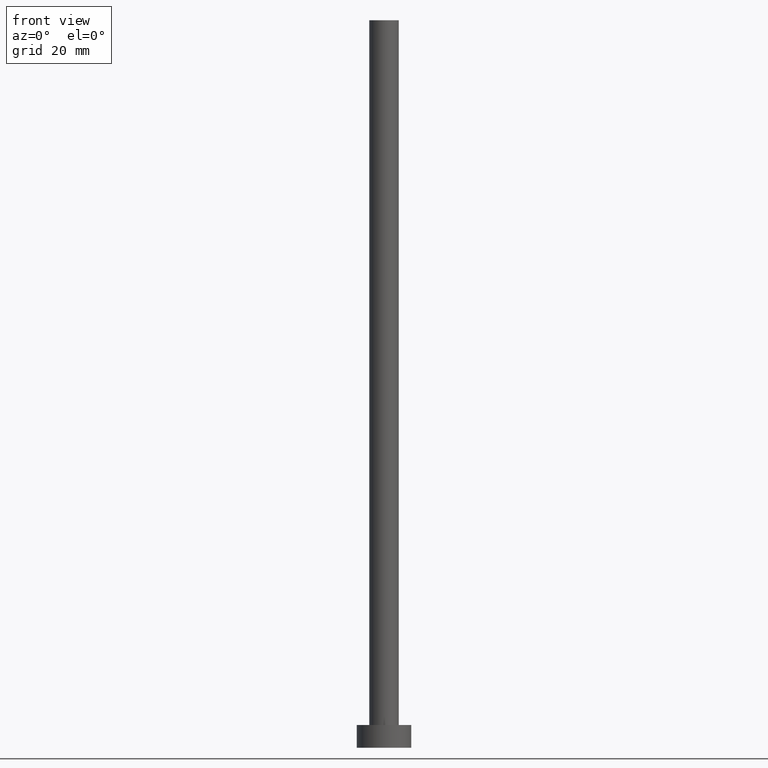
[diagram: clean part render]
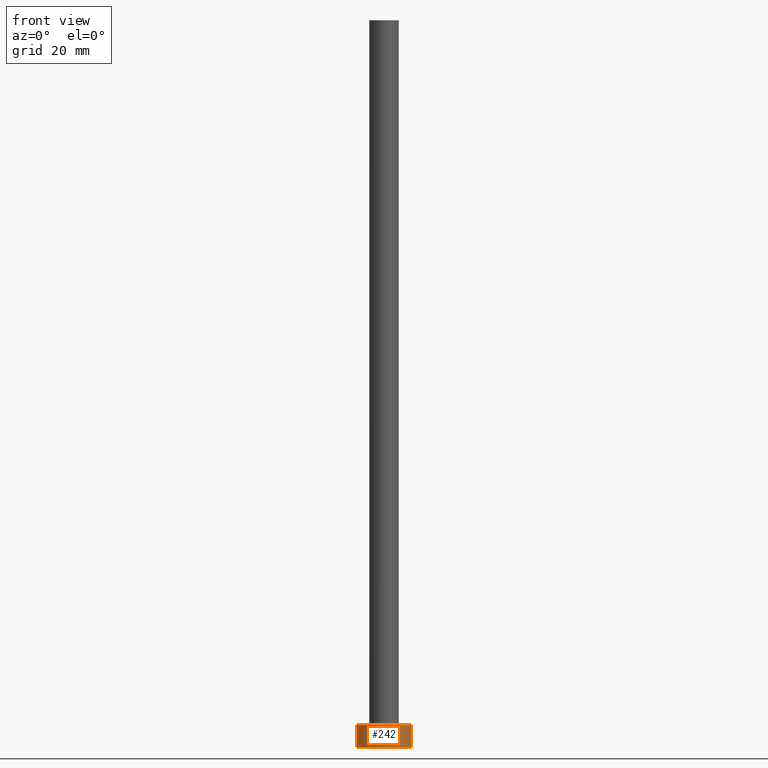
[diagram: same view with one face highlighted and labeled with its STEP entity id]
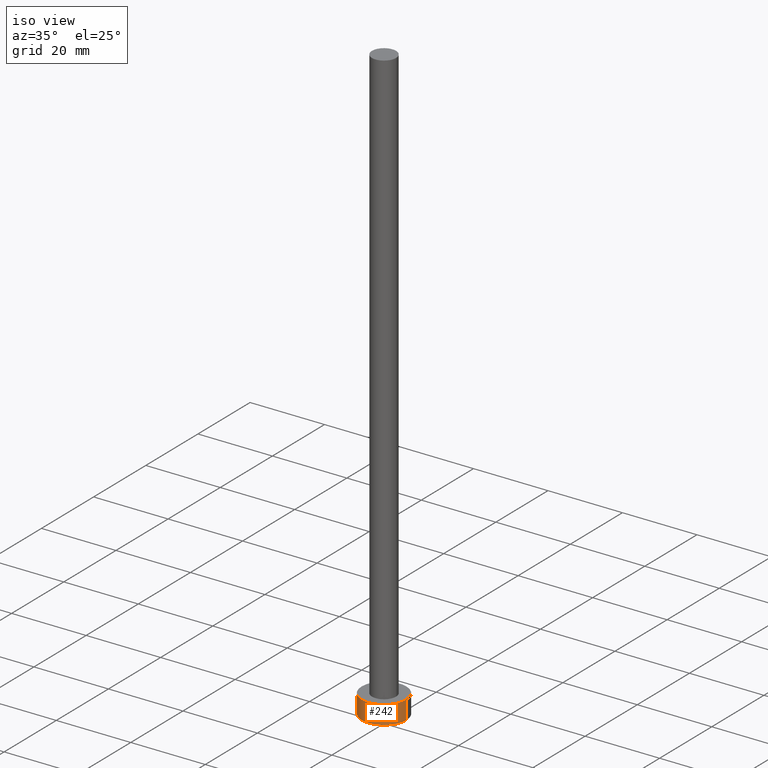
[diagram: same view with one face highlighted and labeled with its STEP entity id]
A machine part, front view. The second image highlights one B-rep face of the part: STEP entity #242.
A second angle (iso view) of the same face is appended — the face is thin or edge-on in the first view.
In plain terms, the highlighted cylindrical surface (edge-blend (fillet) strip) has radius 6 mm, axis along (-0, -0, -1).
Its self-contained STEP definition (entity closure, byte-faithful):
#6 = CARTESIAN_POINT ( 'NONE',  ( 6.000000000000000888, 7.347880794884120722E-16, 0.000000000000000000 ) ) ;
#8 = CARTESIAN_POINT ( 'NONE',  ( -6.000000000000000888, 0.000000000000000000, 0.000000000000000000 ) ) ;
#12 = DIRECTION ( 'NONE',  ( 1.000000000000000000, 0.000000000000000000, 0.000000000000000000 ) ) ;
#15 = EDGE_CURVE ( 'NONE', #114, #231, #133, .T. ) ;
#18 = CIRCLE ( 'NONE', #144, 6.000000000000000888 ) ;
#20 = DIRECTION ( 'NONE',  ( -0.000000000000000000, -0.000000000000000000, -1.000000000000000000 ) ) ;
#23 = ORIENTED_EDGE ( 'NONE', *, *, #65, .T. ) ;
#46 = EDGE_CURVE ( 'NONE', #114, #241, #254, .T. ) ;
#55 = DIRECTION ( 'NONE',  ( 0.000000000000000000, 0.000000000000000000, 1.000000000000000000 ) ) ;
#57 = CARTESIAN_POINT ( 'NONE',  ( -6.000000000000000888, 0.000000000000000000, 5.000000000000000000 ) ) ;
#65 = EDGE_CURVE ( 'NONE', #241, #248, #18, .T. ) ;
#85 = CARTESIAN_POINT ( 'NONE',  ( -6.000000000000000888, 0.000000000000000000, 5.000000000000000000 ) ) ;
#94 = CARTESIAN_POINT ( 'NONE',  ( 0.000000000000000000, 0.000000000000000000, 0.000000000000000000 ) ) ;
#99 = AXIS2_PLACEMENT_3D ( 'NONE', #225, #55, #12 ) ;
#108 = ORIENTED_EDGE ( 'NONE', *, *, #143, .F. ) ;
#111 = AXIS2_PLACEMENT_3D ( 'NONE', #134, #220, #206 ) ;
#114 = VERTEX_POINT ( 'NONE', #85 ) ;
#115 = DIRECTION ( 'NONE',  ( 0.000000000000000000, 0.000000000000000000, 1.000000000000000000 ) ) ;
#123 = VECTOR ( 'NONE', #20, 1000.000000000000000 ) ;
#133 = CIRCLE ( 'NONE', #99, 6.000000000000000888 ) ;
#134 = CARTESIAN_POINT ( 'NONE',  ( 0.000000000000000000, 0.000000000000000000, 5.000000000000000000 ) ) ;
#143 = EDGE_CURVE ( 'NONE', #231, #248, #236, .T. ) ;
#144 = AXIS2_PLACEMENT_3D ( 'NONE', #94, #115, #190 ) ;
#153 = EDGE_LOOP ( 'NONE', ( #108, #192, #177, #23 ) ) ;
#170 = FACE_OUTER_BOUND ( 'NONE', #153, .T. ) ;
#177 = ORIENTED_EDGE ( 'NONE', *, *, #46, .T. ) ;
#179 = CARTESIAN_POINT ( 'NONE',  ( 6.000000000000000888, 7.347880794884120722E-16, 5.000000000000000000 ) ) ;
#183 = DIRECTION ( 'NONE',  ( -0.000000000000000000, -0.000000000000000000, -1.000000000000000000 ) ) ;
#190 = DIRECTION ( 'NONE',  ( 1.000000000000000000, 0.000000000000000000, 0.000000000000000000 ) ) ;
#192 = ORIENTED_EDGE ( 'NONE', *, *, #15, .F. ) ;
#193 = VECTOR ( 'NONE', #183, 1000.000000000000000 ) ;
#202 = CARTESIAN_POINT ( 'NONE',  ( 6.000000000000000888, 7.347880794884120722E-16, 5.000000000000000000 ) ) ;
#206 = DIRECTION ( 'NONE',  ( -1.000000000000000000, 0.000000000000000000, 0.000000000000000000 ) ) ;
#220 = DIRECTION ( 'NONE',  ( -0.000000000000000000, -0.000000000000000000, -1.000000000000000000 ) ) ;
#225 = CARTESIAN_POINT ( 'NONE',  ( 0.000000000000000000, 0.000000000000000000, 5.000000000000000000 ) ) ;
#231 = VERTEX_POINT ( 'NONE', #202 ) ;
#236 = LINE ( 'NONE', #179, #193 ) ;
#241 = VERTEX_POINT ( 'NONE', #8 ) ;
#242 = ADVANCED_FACE ( 'NONE', ( #170 ), #245, .T. ) ;
#245 = CYLINDRICAL_SURFACE ( 'NONE', #111, 6.000000000000000888 ) ;
#248 = VERTEX_POINT ( 'NONE', #6 ) ;
#254 = LINE ( 'NONE', #57, #123 ) ;